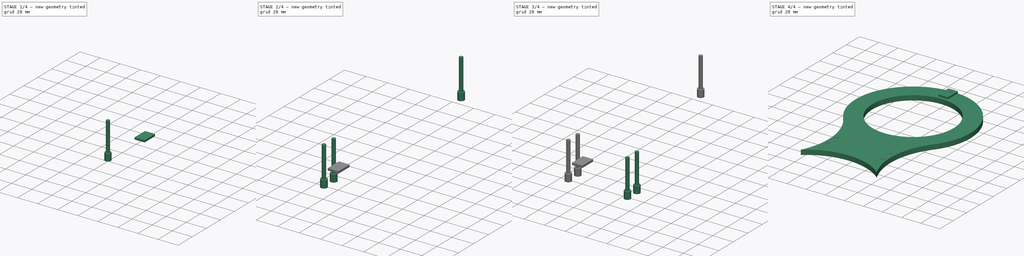
[diagram: build sequence overview — one tinted view per stage of 4, left to right]
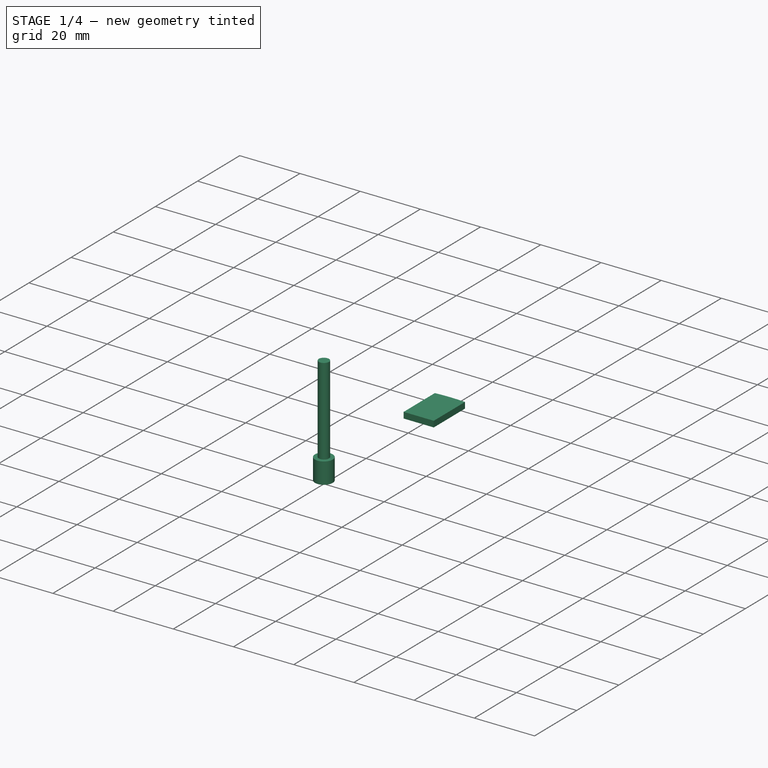
[diagram: stage 1 of 4 — iso view after this stage's code; geometry added in this stage tinted green]
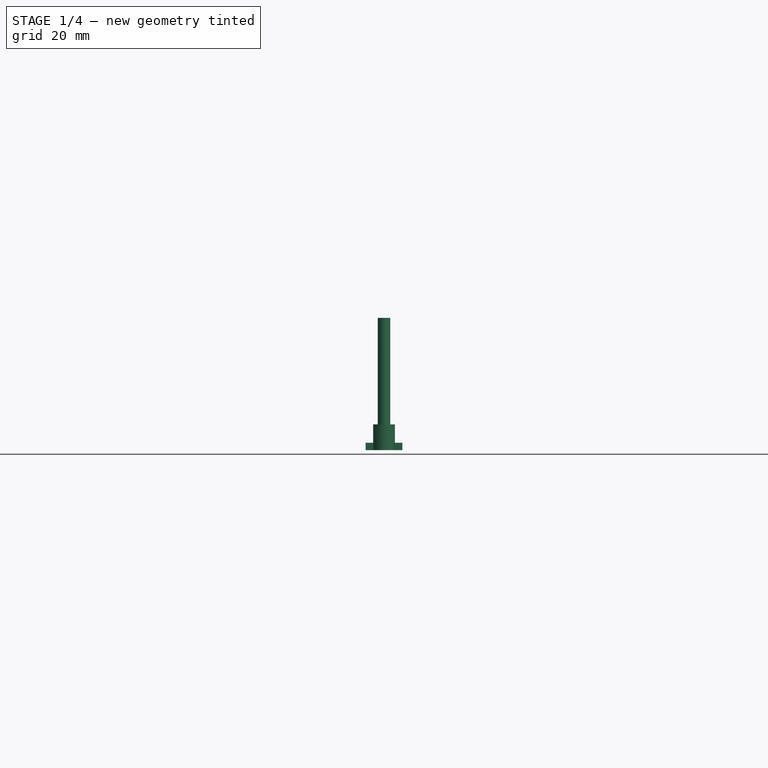
[diagram: stage 1 of 4 — front view after this stage's code; geometry added in this stage tinted green]
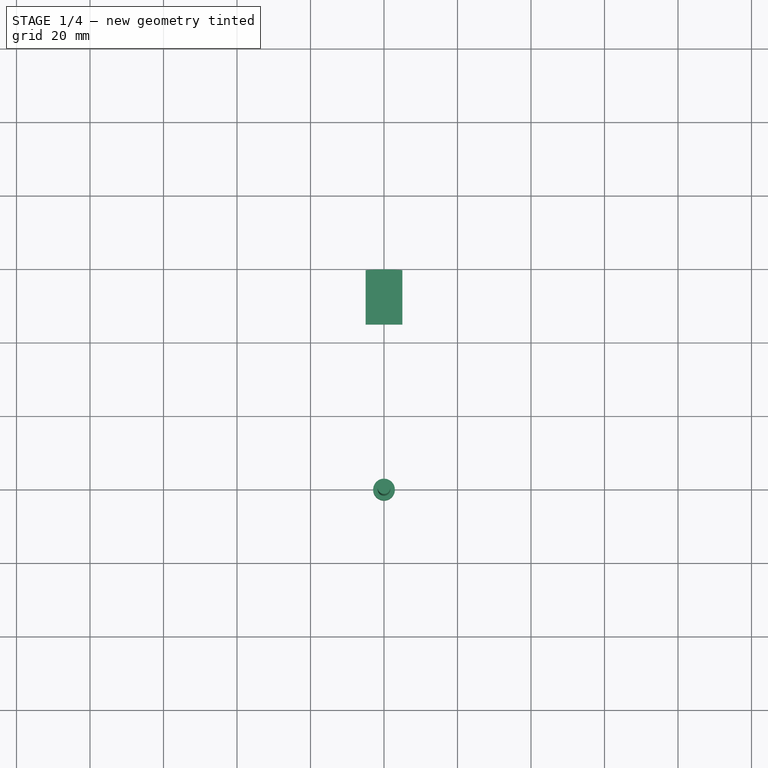
[diagram: stage 1 of 4 — top view after this stage's code; geometry added in this stage tinted green]
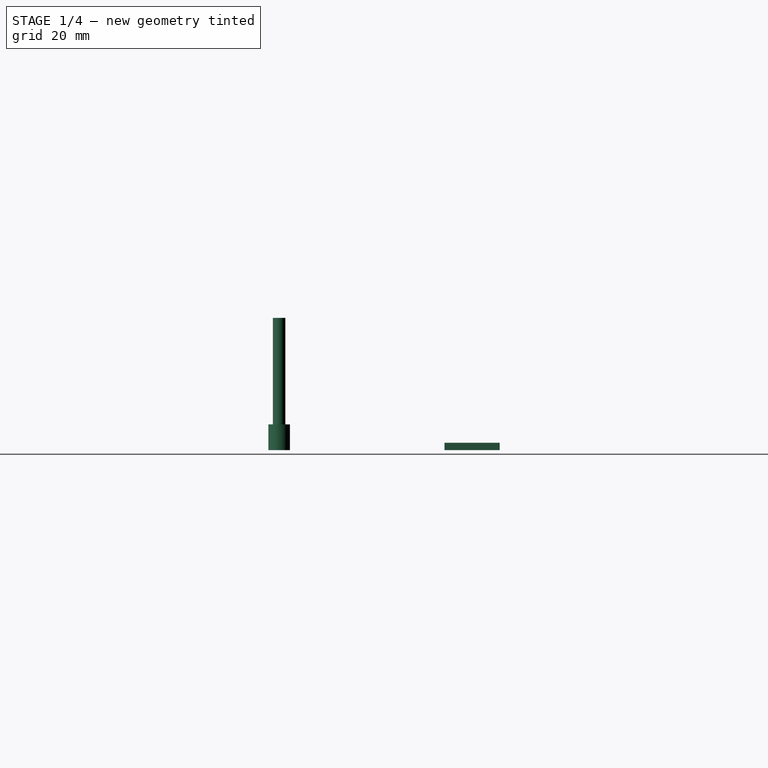
[diagram: stage 1 of 4 — right view after this stage's code; geometry added in this stage tinted green]
FCSTD DOCUMENT  (FreeCAD 0.16R6703 (Git))
Label: Art2BodyACover2
License: All rights reserved
LicenseURL: http://en.wikipedia.org/wiki/All_rights_reserved
objects: Part::FeaturePython×6, Part::MultiFuse×3, Part::Cylinder×2, Sketcher::SketchObject×2, PartDesign::Pad×2, Part::Cut×1, App::DocumentObjectGroup×1
note: 18 computed .brp shape members not serialized (recipe doc carries the construction recipe); baked Part::Feature solids carry a one-line shape summary decoded from their .brp

FEATURE [Part::Cylinder] Cylinder  label="M3BoltHead"
  Angle = 360
  Height = 7
  Radius = 2.95
FEATURE [Part::Cylinder] Cylinder001  label="M3BoltBody"
  Angle = 360
  Height = 30
  Placement = pos=(0,0,6) rot=(0,0,1;0rad)
  Radius = 1.7
FEATURE [Part::MultiFuse] Fusion  label="M3Bolt"
  Shapes = -> [Cylinder001,Cylinder]
FEATURE [Sketcher::SketchObject] Sketch032
  sketch-geometry (4):
    g0: ArcOfCircle CenterX=0 CenterY=0 CenterZ=0 NormalX=0 NormalY=0 NormalZ=1 Radius=60 StartAngle=1.48737 EndAngle=1.65423
    g1: LineSegment StartX=5 StartY=59.7913 StartZ=0 EndX=5 EndY=45 EndZ=0
    g2: LineSegment StartX=5 StartY=45 StartZ=0 EndX=-5 EndY=45 EndZ=0
    g3: LineSegment StartX=-5 StartY=45 StartZ=0 EndX=-5 EndY=59.7913 EndZ=0
  constraints (12):
    c: Coincident(g0,g-1)
    c: Coincident(g1,g2)
    c: Coincident(g2,g3)
    c: Horizontal(g2)
    c: Vertical(g1)
    c: Vertical(g3)
    c: Radius(g0) = 60
    c: DistanceX(g2) = -10
    c: DistanceX(g-1,g1) = 5
    c: DistanceY(g-1,g1) = 45
    c: Coincident(g0,g1)
    c: Coincident(g0,g3)
FEATURE [PartDesign::Pad] Pad023  label="Art2CoverSupportMaster"
  Length = 2
  Length2 = 100
  Sketch = -> Sketch032
  Type = 0
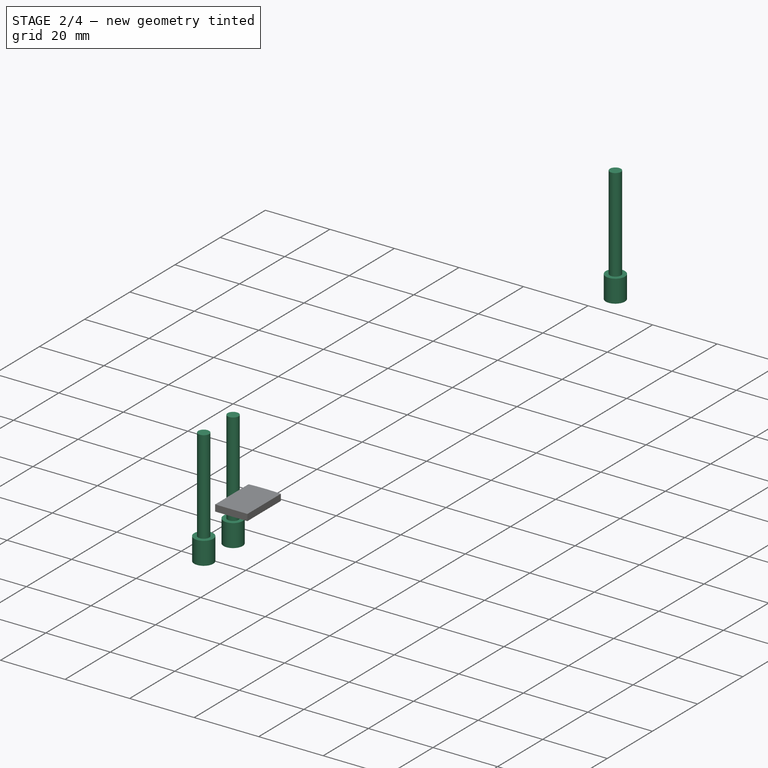
[diagram: stage 2 of 4 — iso view after this stage's code; geometry added in this stage tinted green]
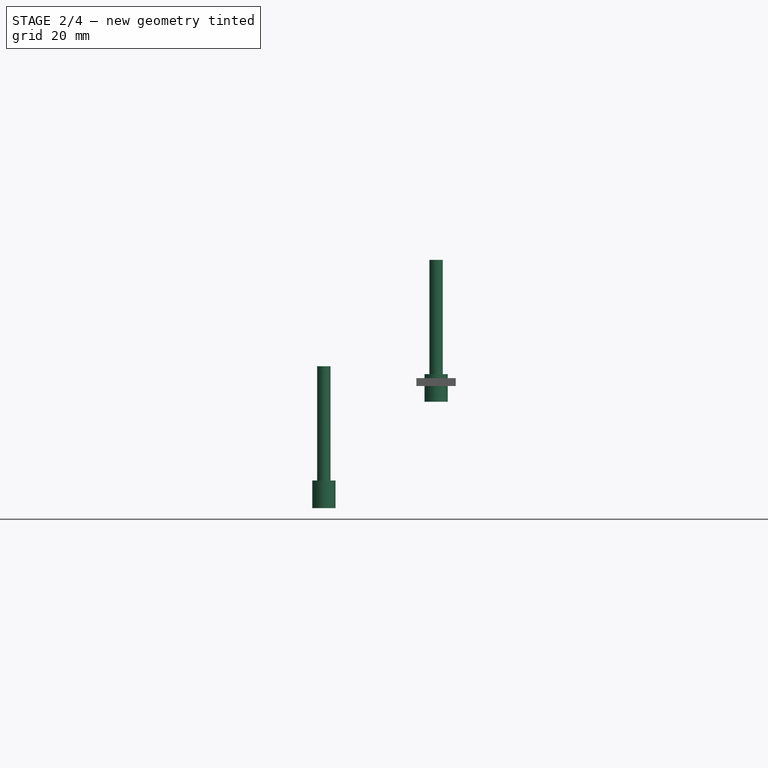
[diagram: stage 2 of 4 — front view after this stage's code; geometry added in this stage tinted green]
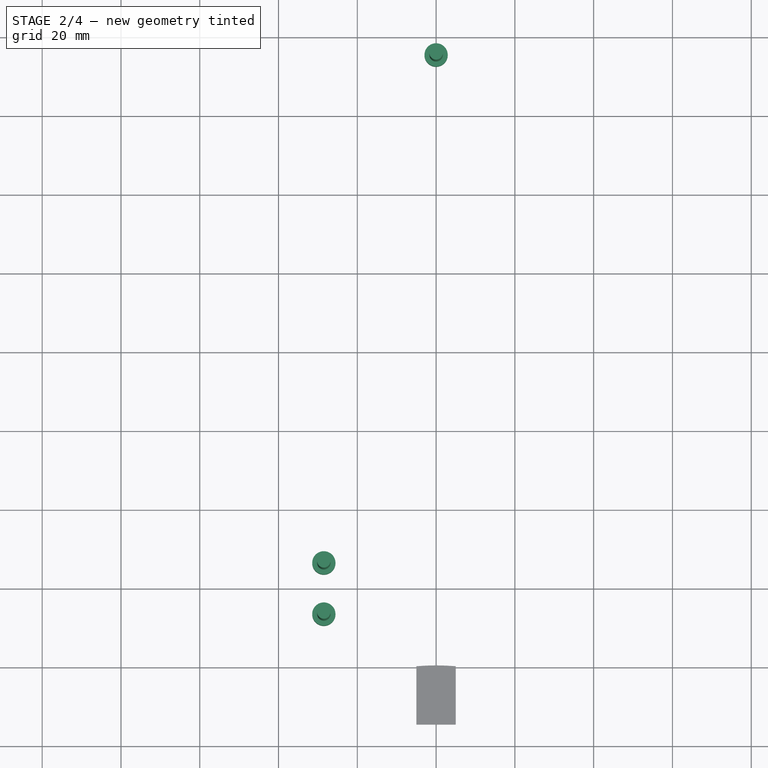
[diagram: stage 2 of 4 — top view after this stage's code; geometry added in this stage tinted green]
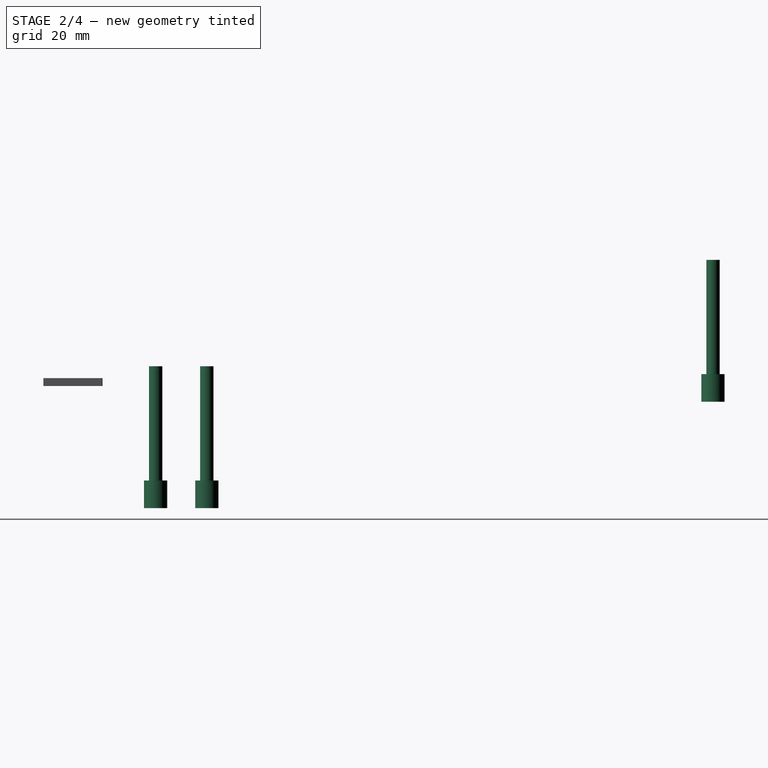
[diagram: stage 2 of 4 — right view after this stage's code; geometry added in this stage tinted green]
FEATURE [Part::FeaturePython] Clone195  label="Clone of M3Bolt061"  # Draft clone (typed FeaturePython)
  Objects = -> [Fusion]
  Placement = pos=(-28.5,73.5,-31) rot=(0,0,1;0rad)
  Scale = (1,1,1)
FEATURE [Part::FeaturePython] Clone196  label="Clone of M3Bolt062"  # Draft clone (typed FeaturePython)
  Objects = -> [Fusion]
  Placement = pos=(-28.5,86.5,-31) rot=(0,0,1;0rad)
  Scale = (1,1,1)
FEATURE [Part::FeaturePython] Clone197  label="Clone of M3Bolt063"  # Draft clone (typed FeaturePython)
  Objects = -> [Fusion]
  Placement = pos=(0,215,-4) rot=(0,0,1;0rad)
  Scale = (1,1,1)
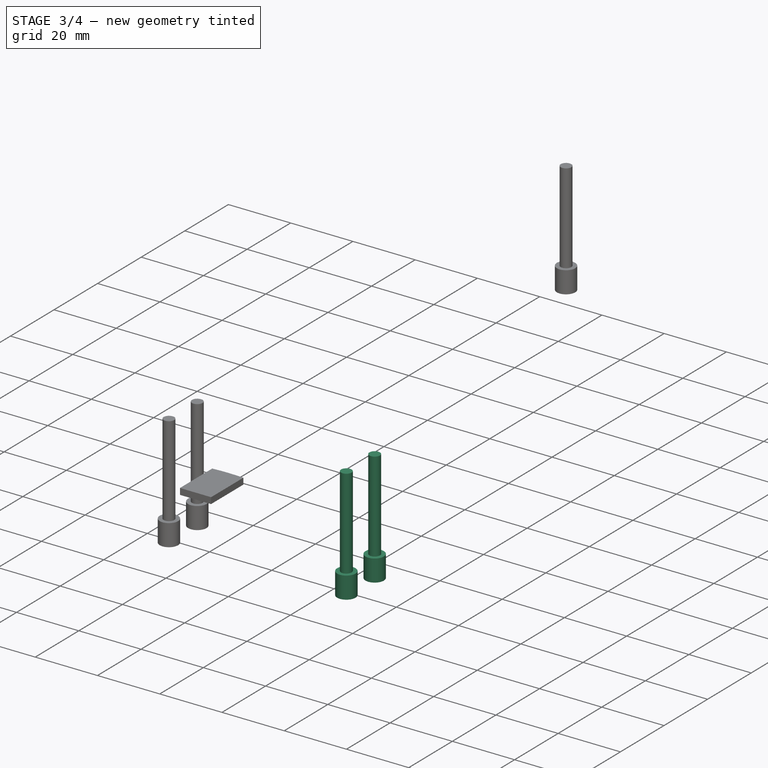
[diagram: stage 3 of 4 — iso view after this stage's code; geometry added in this stage tinted green]
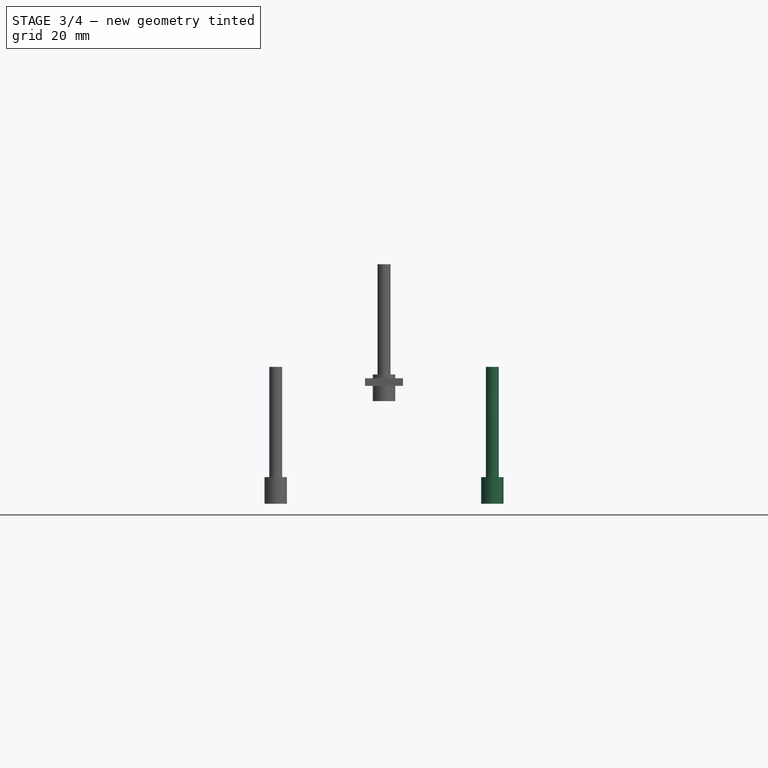
[diagram: stage 3 of 4 — front view after this stage's code; geometry added in this stage tinted green]
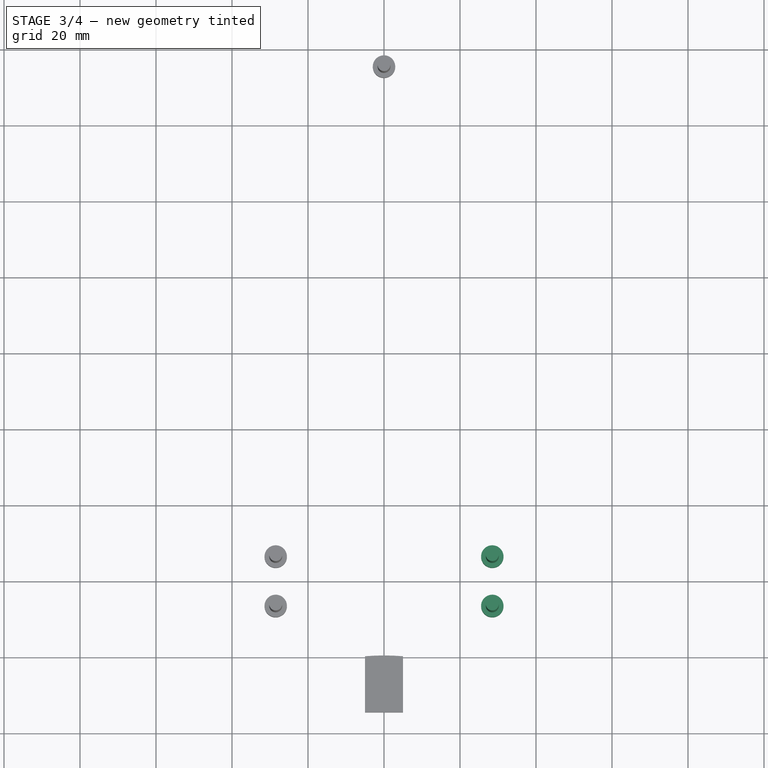
[diagram: stage 3 of 4 — top view after this stage's code; geometry added in this stage tinted green]
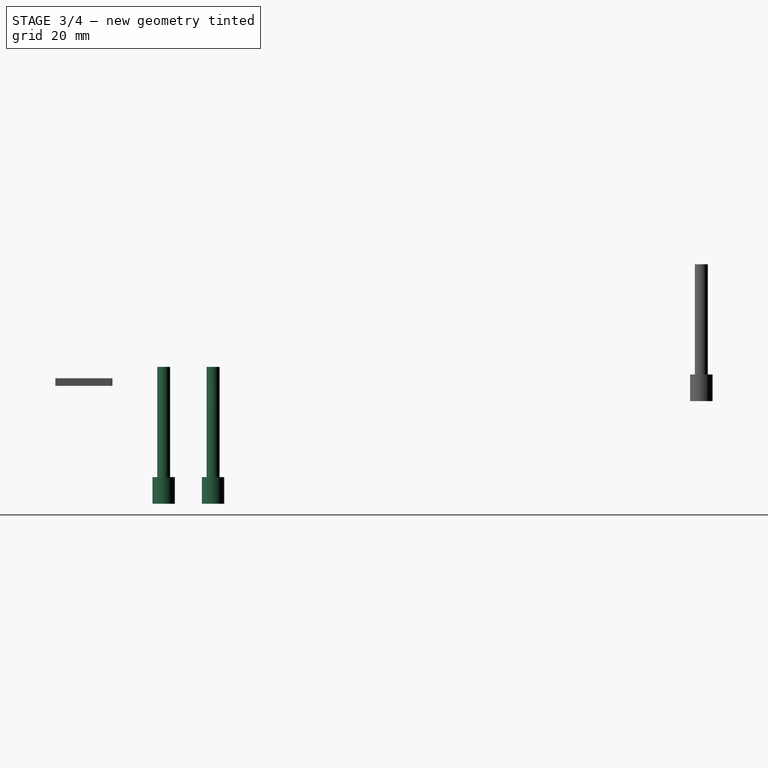
[diagram: stage 3 of 4 — right view after this stage's code; geometry added in this stage tinted green]
FEATURE [Part::FeaturePython] Clone193  label="Clone of M3Bolt059"  # Draft clone (typed FeaturePython)
  Objects = -> [Fusion]
  Placement = pos=(28.5,86.5,-31) rot=(0,0,1;0rad)
  Scale = (1,1,1)
FEATURE [Part::FeaturePython] Clone194  label="Clone of M3Bolt060"  # Draft clone (typed FeaturePython)
  Objects = -> [Fusion]
  Placement = pos=(28.5,73.5,-31) rot=(0,0,1;0rad)
  Scale = (1,1,1)
FEATURE [Part::MultiFuse] Fusion071
  Shapes = -> [Clone193,Clone194,Clone195,Clone196,Clone197]
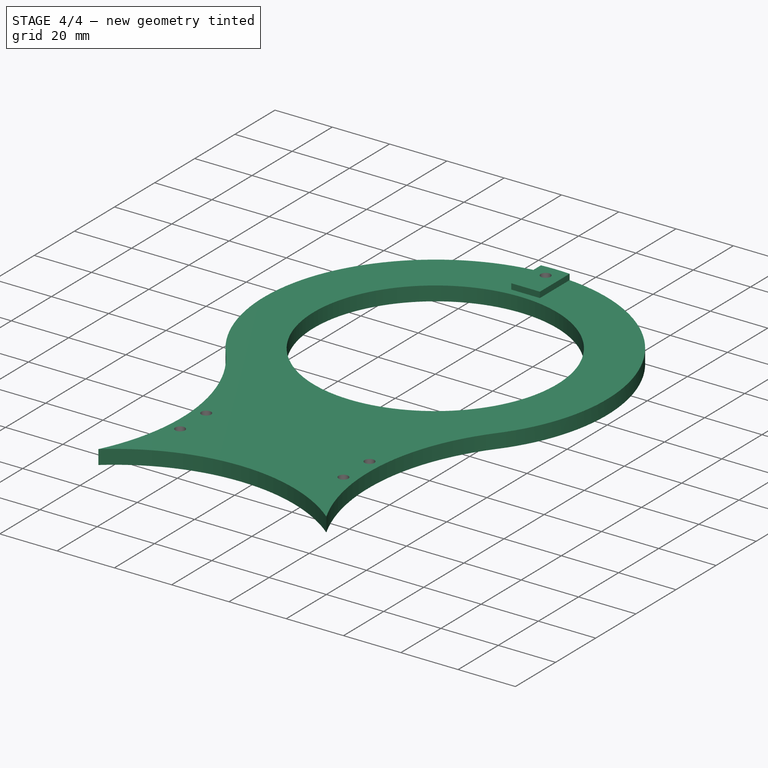
[diagram: stage 4 of 4 — iso view after this stage's code; geometry added in this stage tinted green]
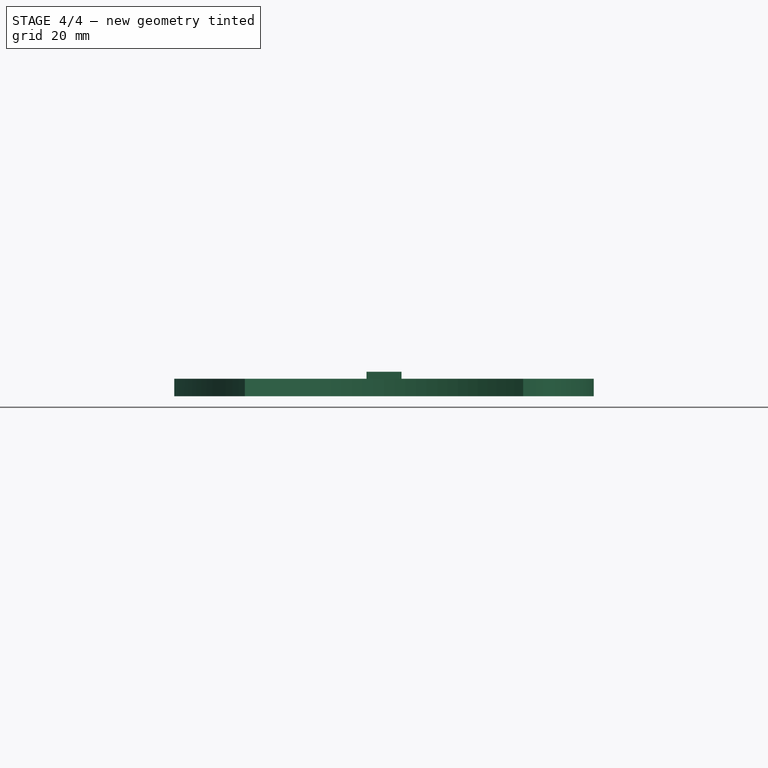
[diagram: stage 4 of 4 — front view after this stage's code; geometry added in this stage tinted green]
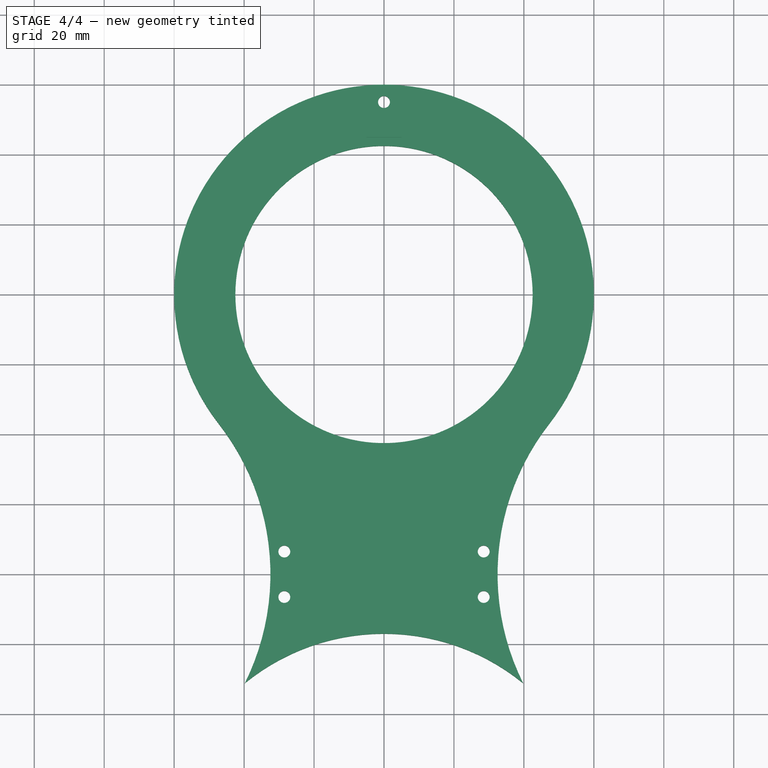
[diagram: stage 4 of 4 — top view after this stage's code; geometry added in this stage tinted green]
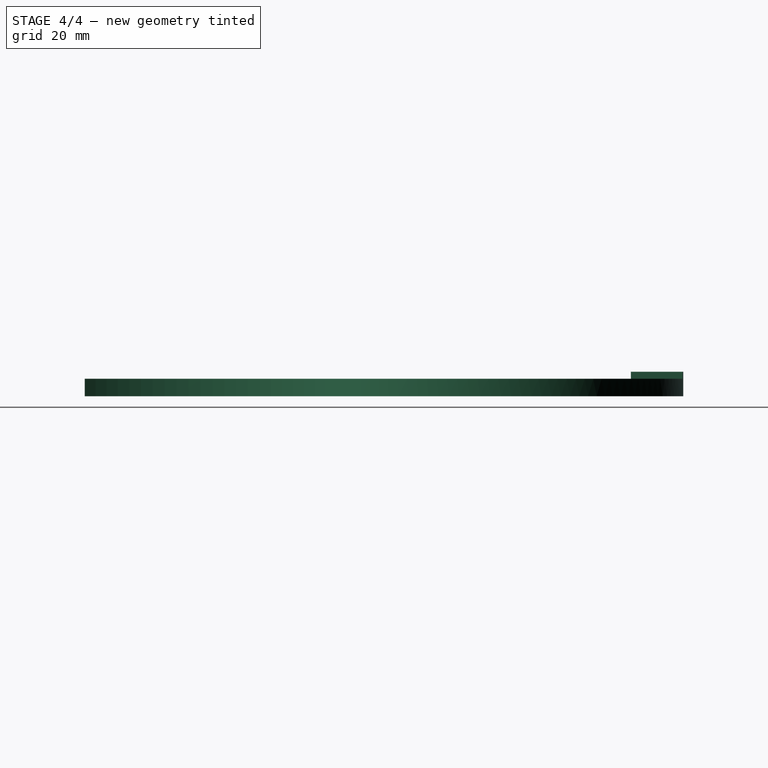
[diagram: stage 4 of 4 — right view after this stage's code; geometry added in this stage tinted green]
FEATURE [Sketcher::SketchObject] Sketch033
  sketch-geometry (5):
    g0: ArcOfCircle CenterX=102.47 CenterY=80 CenterZ=0 NormalX=0 NormalY=0 NormalZ=1 Radius=70 StartAngle=2.47872 EndAngle=3.60276
    g1: ArcOfCircle CenterX=-102.47 CenterY=80 CenterZ=0 NormalX=0 NormalY=0 NormalZ=1 Radius=70 StartAngle=5.82202 EndAngle=6.94606
    g2: ArcOfCircle CenterX=0 CenterY=160 CenterZ=0 NormalX=0 NormalY=0 NormalZ=1 Radius=60 StartAngle=5.62031 EndAngle=10.0877
    g3: Circle CenterX=0 CenterY=160 CenterZ=0 NormalX=0 NormalY=0 NormalZ=1 Radius=42.5
    g4: ArcOfCircle CenterX=0 CenterY=0 CenterZ=0 NormalX=0 NormalY=0 NormalZ=1 Radius=63 StartAngle=0.887361 EndAngle=2.25423
  constraints (17):
    c: Coincident(g2,g0)
    c: Coincident(g1,g2)
    c: DistanceY(g-1,g2) = 160
    c: PointOnObject(g2,g-2)
    c: DistanceY(g1,g0) = 0
    c: Equal(g1,g0)
    c: DistanceY(g1,g0) = 0
    c: Radius(g0) = 70
    c: Coincident(g3,g2)
    c: Radius(g3) = 42.5
    c: Coincident(g4,g-1)
    c: Radius(g4) = 63
    c: Coincident(g4,g0)
    c: Coincident(g4,g1)
    c: DistanceX(g1,g0) = 79.564
    c: Radius(g2) = 60
    c: Tangent(g1,g2)
FEATURE [PartDesign::Pad] Pad024
  Length = 5
  Length2 = 100
  Sketch = -> Sketch033
  Type = 0
FEATURE [Part::FeaturePython] Clone188  label="Clone of Art2CoverSupportMaster002"  # Draft clone (typed FeaturePython)
  Objects = -> [Pad023]
  Placement = pos=(0,160,5) rot=(0,0,1;0rad)
  Scale = (1,1,1)
FEATURE [Part::MultiFuse] Fusion069
  Shapes = -> [Pad024,Clone188]
FEATURE [Part::Cut] Cut060  label="Art2BodyACover2"
  Base = -> Fusion069
  Tool = -> Fusion071
FEATURE [App::DocumentObjectGroup] Group  label="Master"
  Group = -> [Fusion,Pad023]
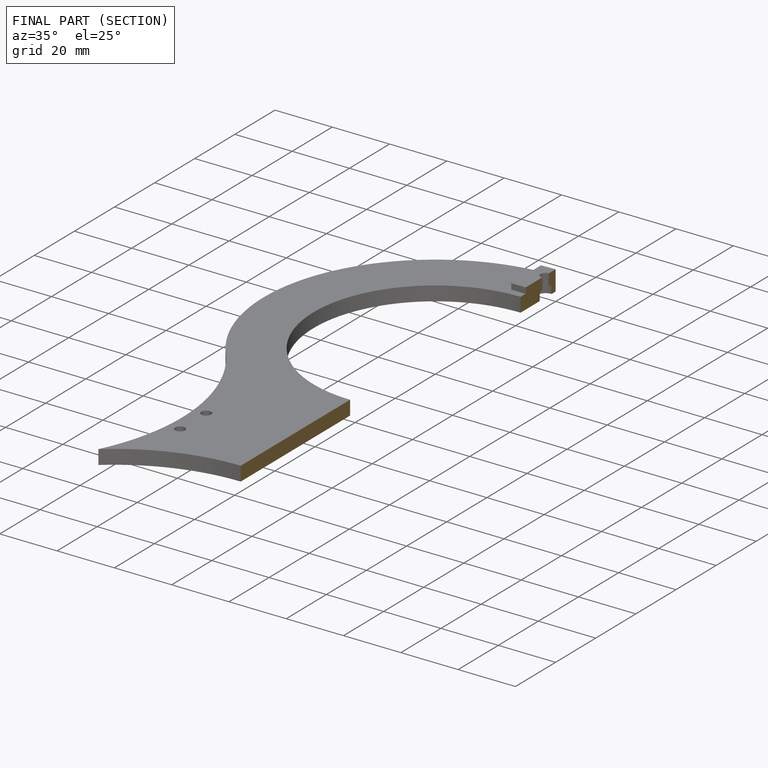
[diagram: finished part — half-section view (interior)]
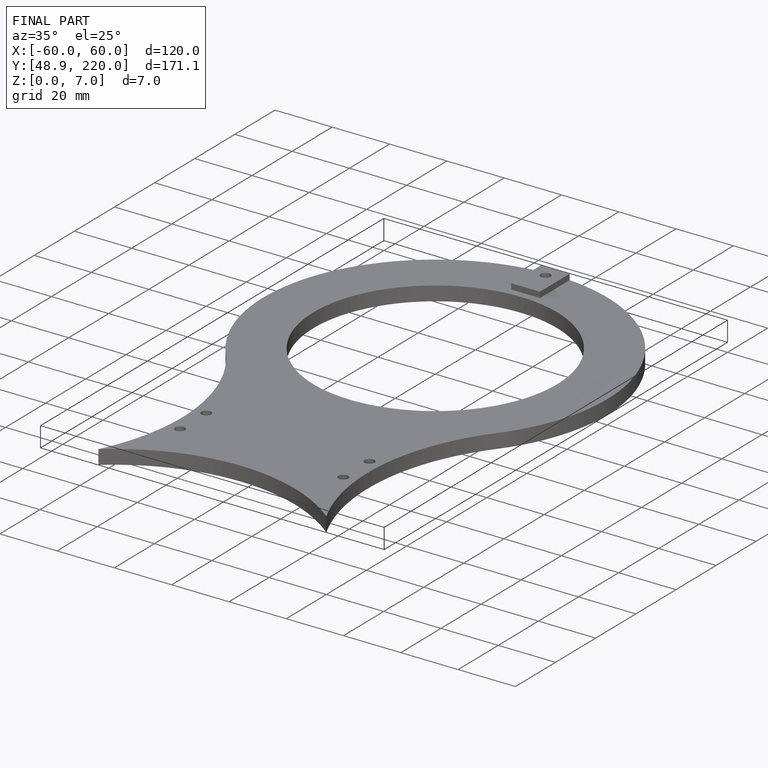
[diagram: finished part — iso view with bounding-box wireframe]
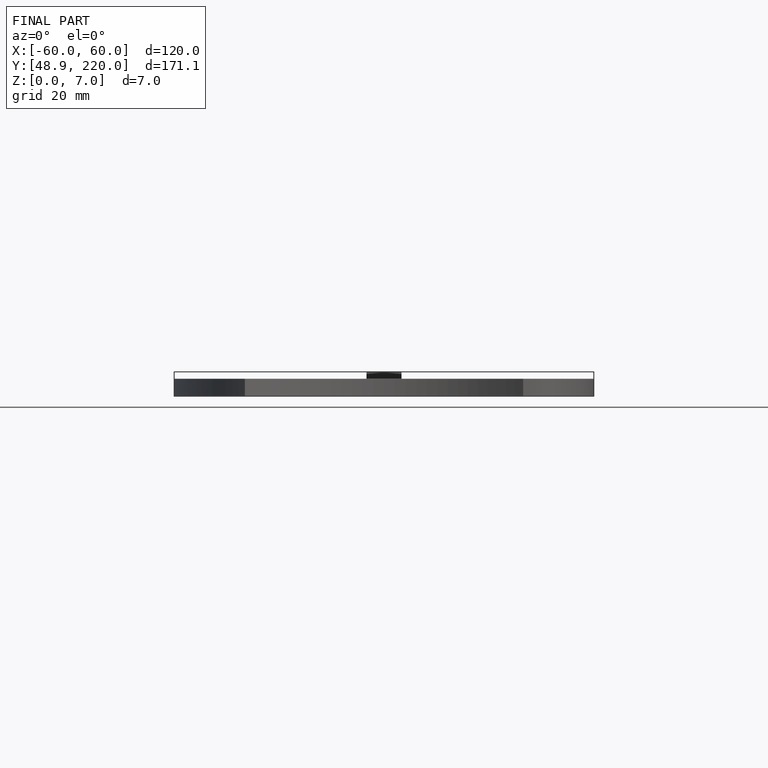
[diagram: finished part — front view with bounding-box wireframe]
